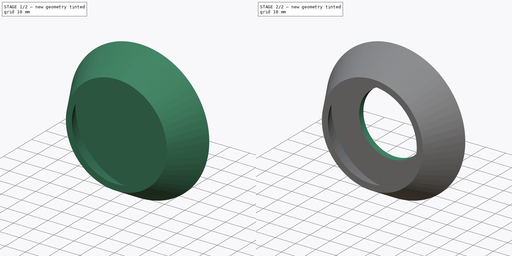
[diagram: build sequence overview — one tinted view per stage of 2, left to right]
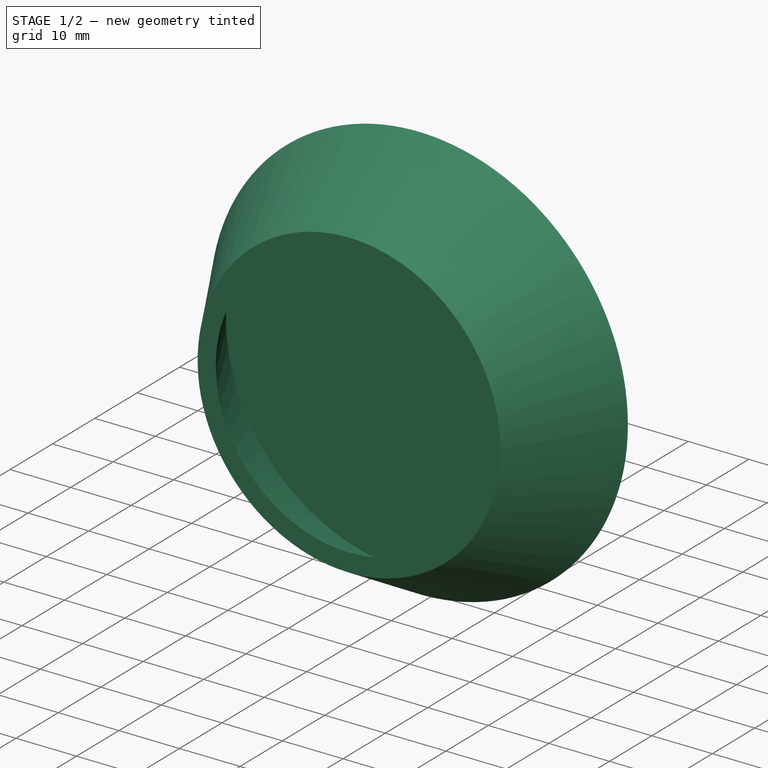
[diagram: stage 1 of 2 — iso view after this stage's code; geometry added in this stage tinted green]
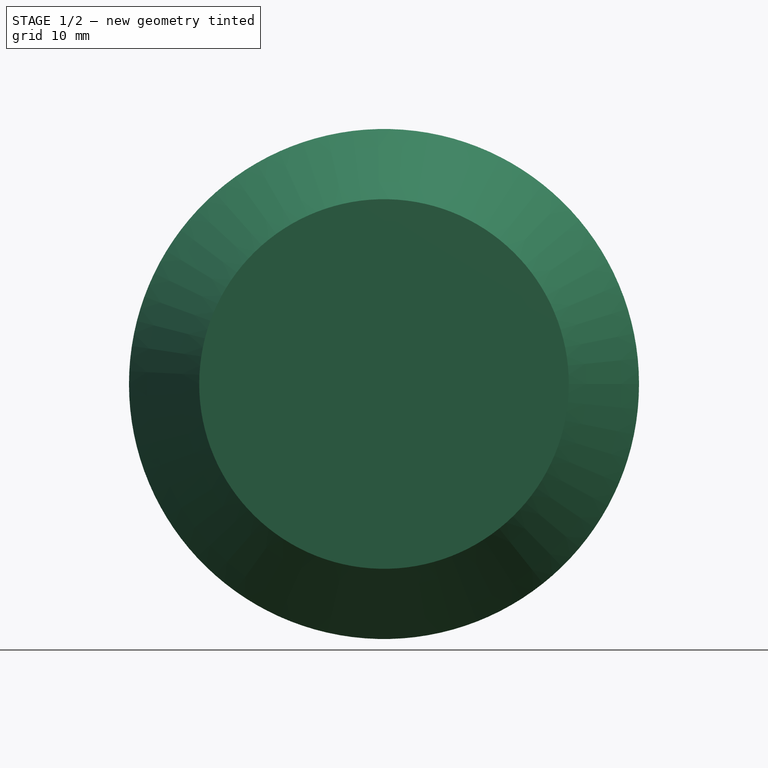
[diagram: stage 1 of 2 — front view after this stage's code; geometry added in this stage tinted green]
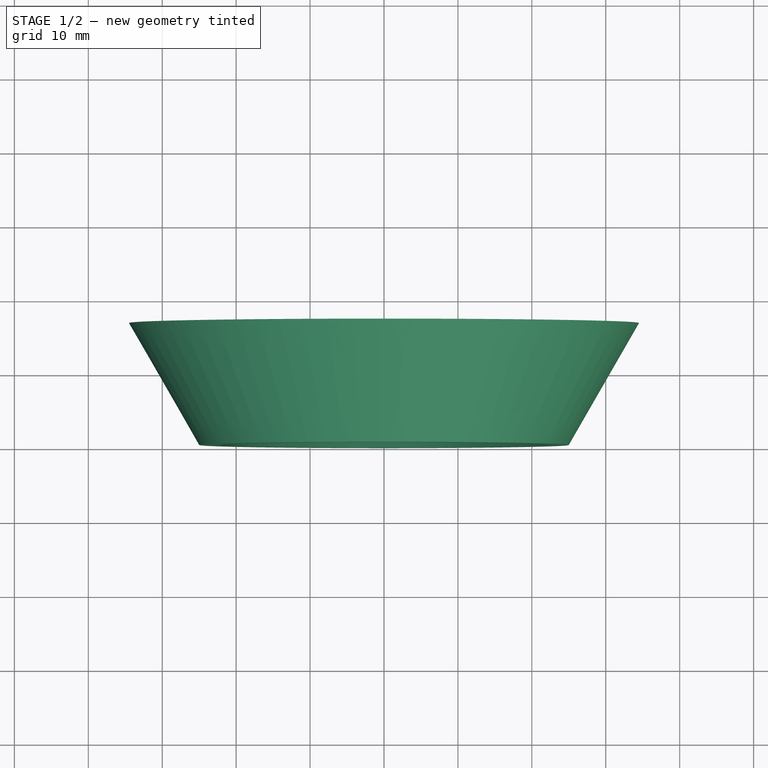
[diagram: stage 1 of 2 — top view after this stage's code; geometry added in this stage tinted green]
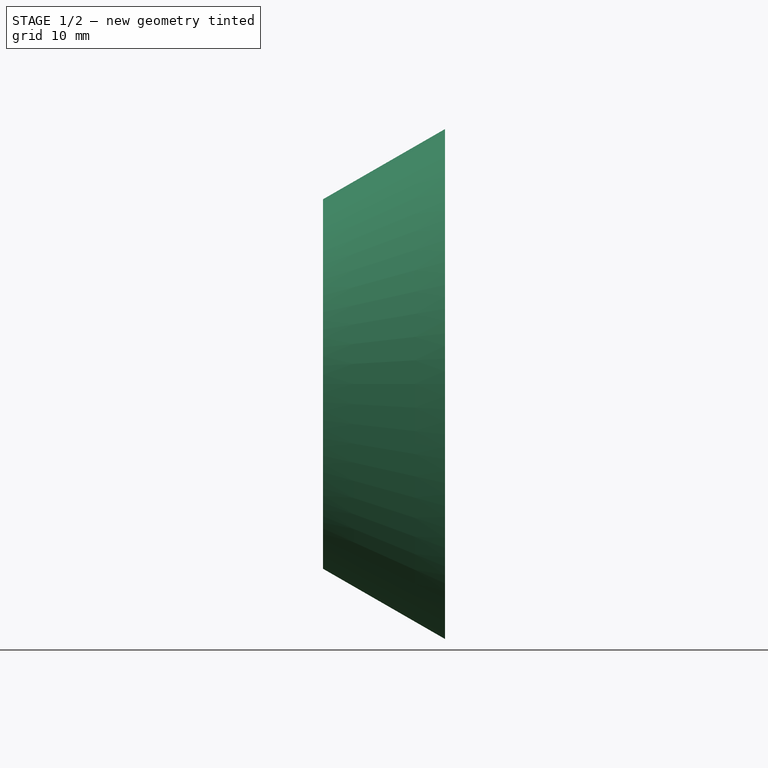
[diagram: stage 1 of 2 — right view after this stage's code; geometry added in this stage tinted green]
FCSTD DOCUMENT  (FreeCAD 0.18R16131 (Git))
Label: S200_cone1
License: All rights reserved
LicenseURL: http://en.wikipedia.org/wiki/All_rights_reserved
objects: Sketcher::SketchObject×2, PartDesign::Revolution×1, PartDesign::Pocket×1, PartDesign::Body×1
note: 7 computed .brp shape members not serialized (recipe doc carries the construction recipe); baked Part::Feature solids carry a one-line shape summary decoded from their .brp

FEATURE [Sketcher::SketchObject] Sketch
  MapMode = 5
  Support = -> [XY_Plane]
  sketch-geometry (6):
    g0: LineSegment StartX=25 StartY=0 StartZ=0 EndX=22 EndY=0 EndZ=0
    g1: LineSegment StartX=0 StartY=13.5 StartZ=0 EndX=29.7727 EndY=13.5 EndZ=0
    g2: LineSegment StartX=29.7727 StartY=13.5 StartZ=0 EndX=22 EndY=0 EndZ=0
    g3: LineSegment StartX=34.5 StartY=16.5 StartZ=0 EndX=25 EndY=0 EndZ=0
    g4: LineSegment StartX=0 StartY=16.5 StartZ=0 EndX=34.5 EndY=16.5 EndZ=0
    g5: LineSegment StartX=0 StartY=13.5 StartZ=0 EndX=0 EndY=16.5 EndZ=0
  constraints (18):
    c: Horizontal(g0)
    c: PointOnObject(g1,g-2)
    c: Horizontal(g1)
    c: Coincident(g2,g1)
    c: Coincident(g2,g0)
    c: Parallel(g3,g2)
    c: PointOnObject(g4,g-2)
    c: Horizontal(g4)
    c: Distance(g1,g4) = 3
    c: Coincident(g3,g4)
    c: Distance(g4,g-1) = 16.5
    c: Coincident(g5,g1)
    c: Coincident(g5,g4)
    c: Coincident(g0,g3)
    c: DistanceY(g0,g-1) = 0
    c: Distance(g-1,g0) = 25
    c: DistanceX(g0,g0) = 3
    c: DistanceX(g4,g4) = 34.5
FEATURE [PartDesign::Revolution] Revolution
  Angle = 360
  Axis = (1e-16,1,-1e-16)
  Base = (0,0,0)
  Profile = -> Sketch
  ReferenceAxis = -> Y_Axis
  Reversed = true
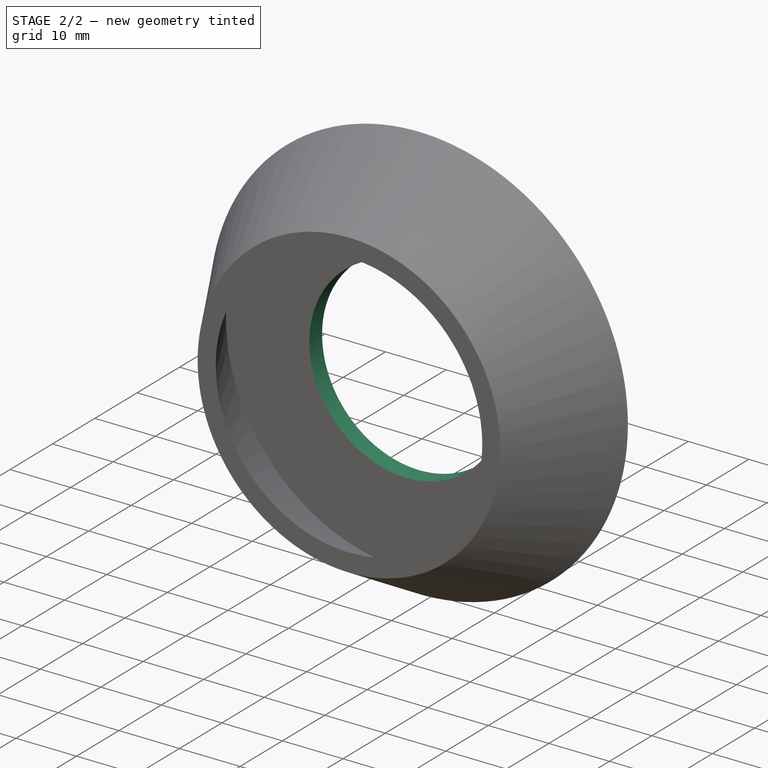
[diagram: stage 2 of 2 — iso view after this stage's code; geometry added in this stage tinted green]
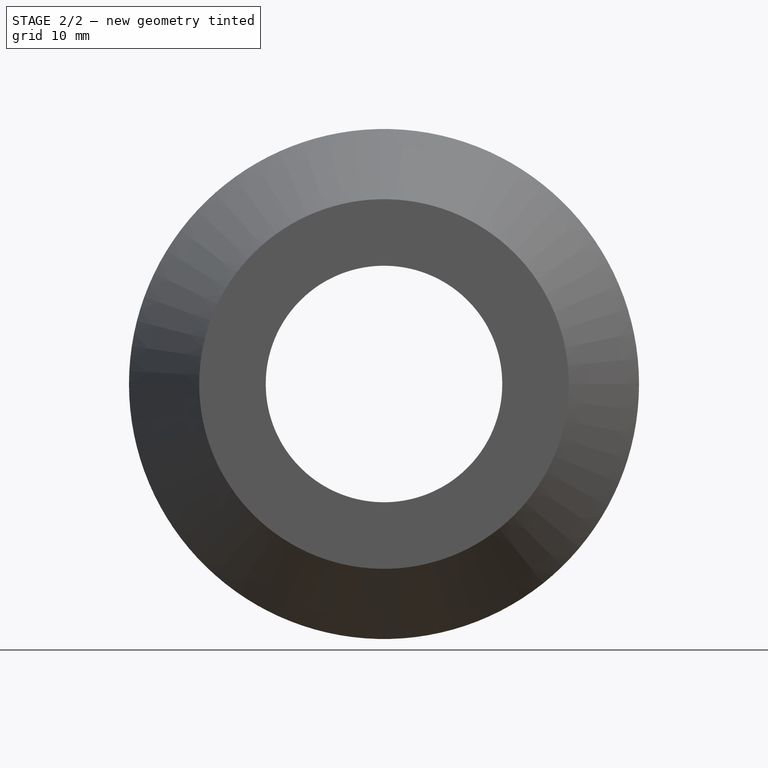
[diagram: stage 2 of 2 — front view after this stage's code; geometry added in this stage tinted green]
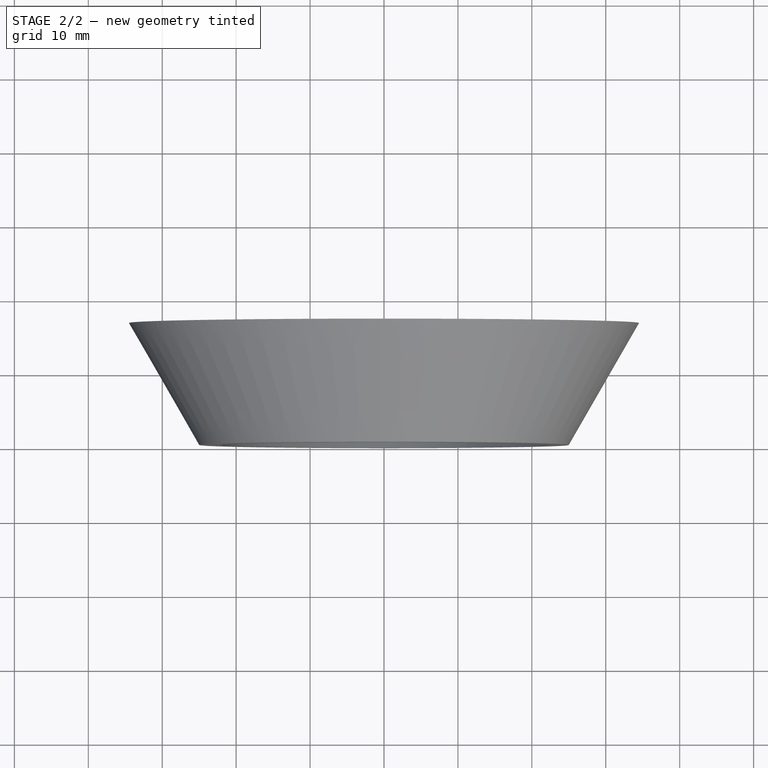
[diagram: stage 2 of 2 — top view after this stage's code; geometry added in this stage tinted green]
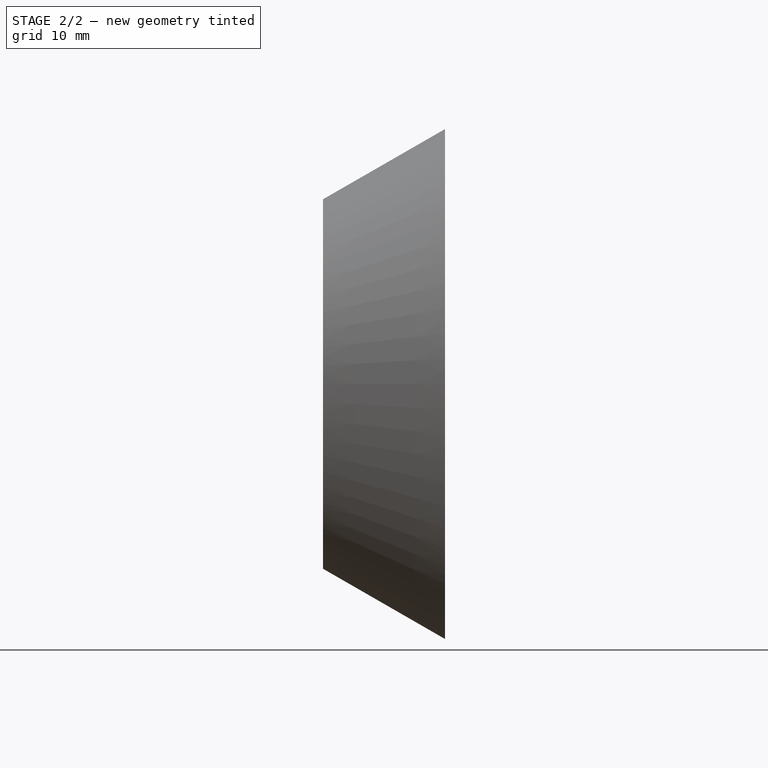
[diagram: stage 2 of 2 — right view after this stage's code; geometry added in this stage tinted green]
FEATURE [Sketcher::SketchObject] Sketch001
  MapMode = 5
  Placement = pos=(0,0,0) rot=(1,0,0;1.5708rad)
  Support = -> [XZ_Plane]
  sketch-geometry (1):
    g0: Circle CenterX=0 CenterY=0 CenterZ=0 NormalX=0 NormalY=0 NormalZ=1 AngleXU=0 Radius=16
  constraints (2):
    c: Coincident(g0,g-1)
    c: Diameter(g0) = 32
FEATURE [PartDesign::Pocket] Pocket
  BaseFeature = -> Revolution
  Length = 5
  Length2 = 100
  Profile = -> Sketch001
  Type = 1
FEATURE [PartDesign::Body] Body
  Group = -> [Sketch,Revolution,Sketch001,Pocket]
  Origin = -> Origin
  Tip = -> Pocket
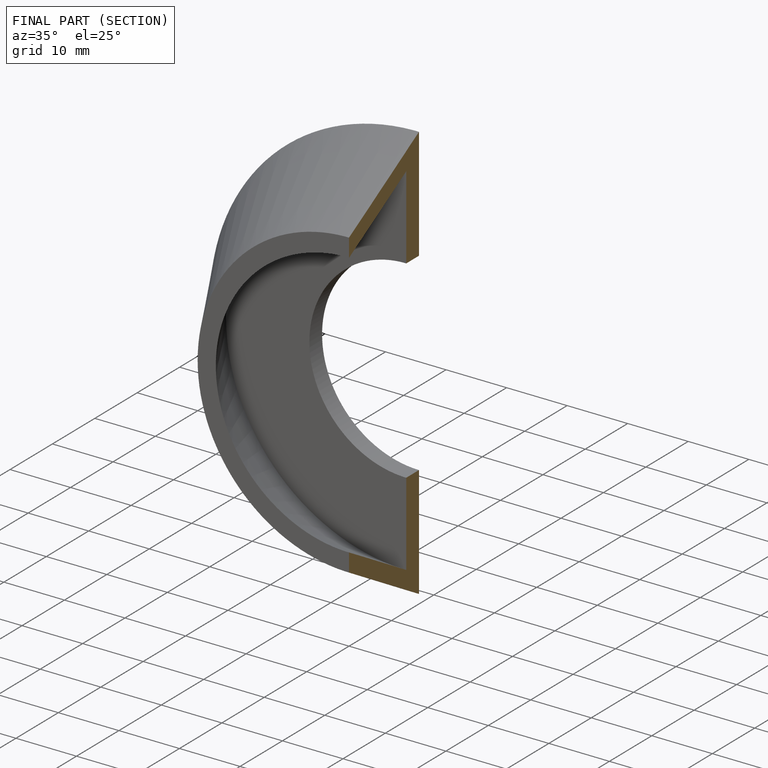
[diagram: finished part — half-section view (interior)]
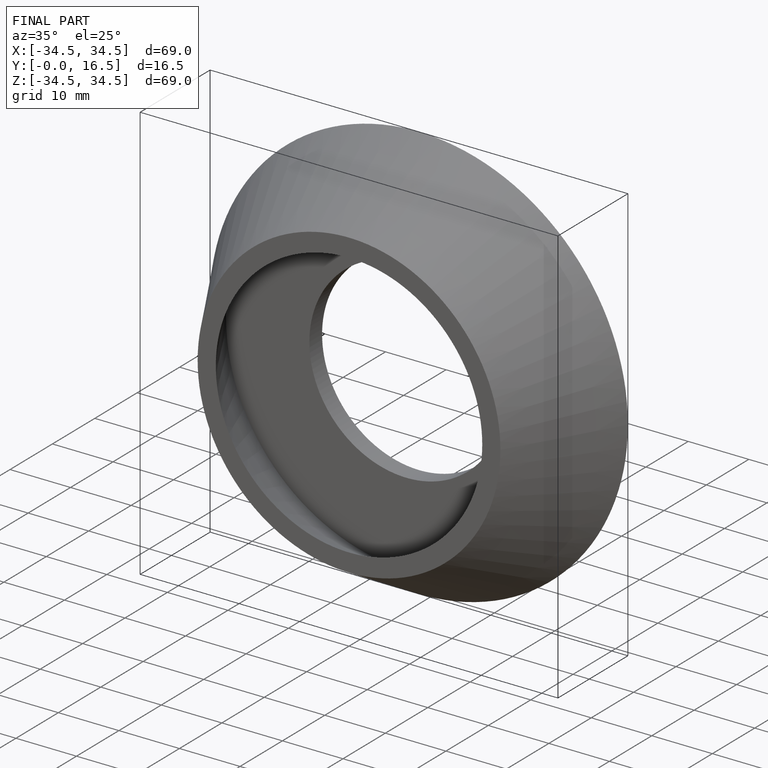
[diagram: finished part — iso view with bounding-box wireframe]
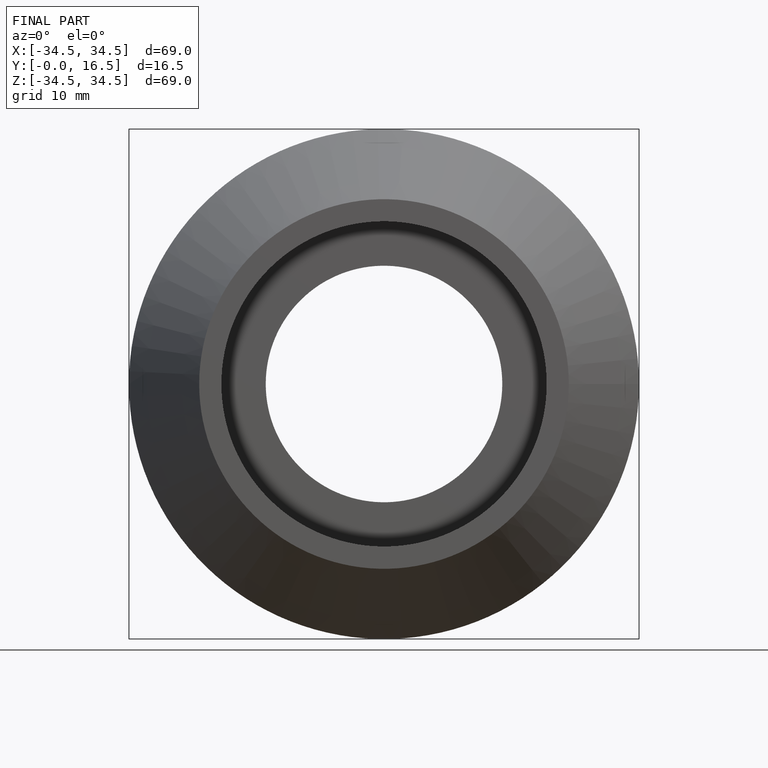
[diagram: finished part — front view with bounding-box wireframe]
